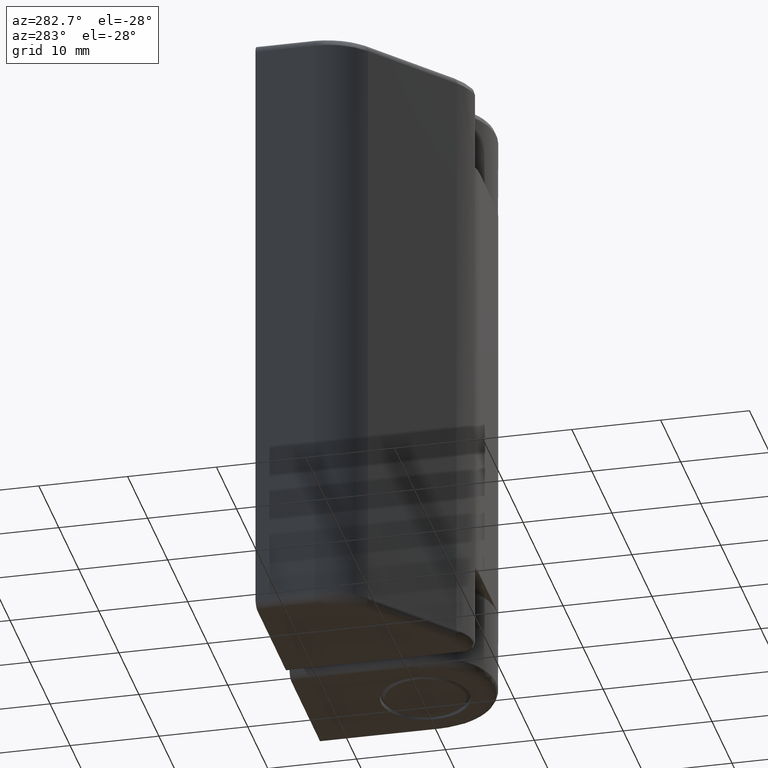
[diagram: clean part render]
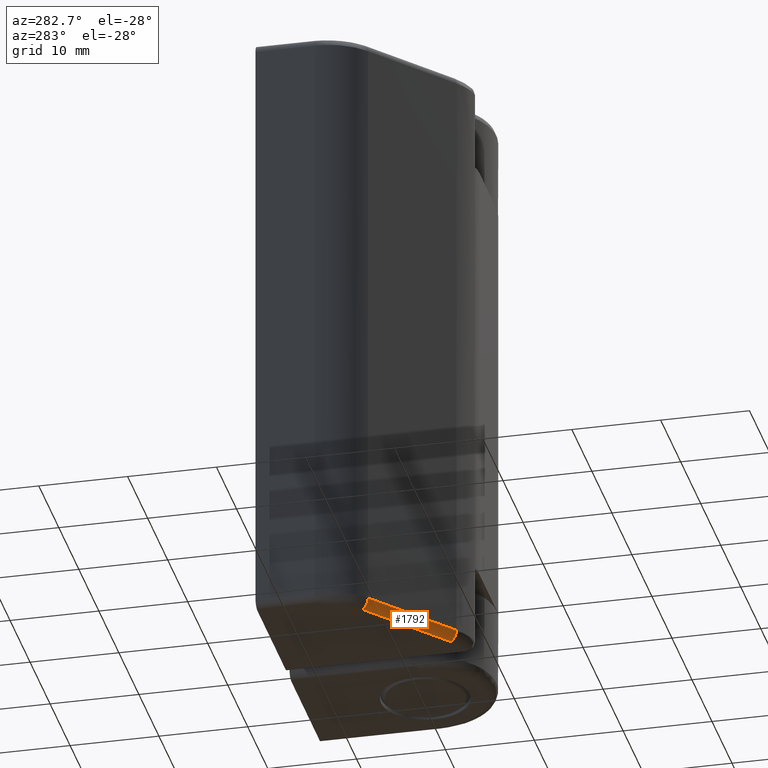
[diagram: same view with one face highlighted and labeled with its STEP entity id]
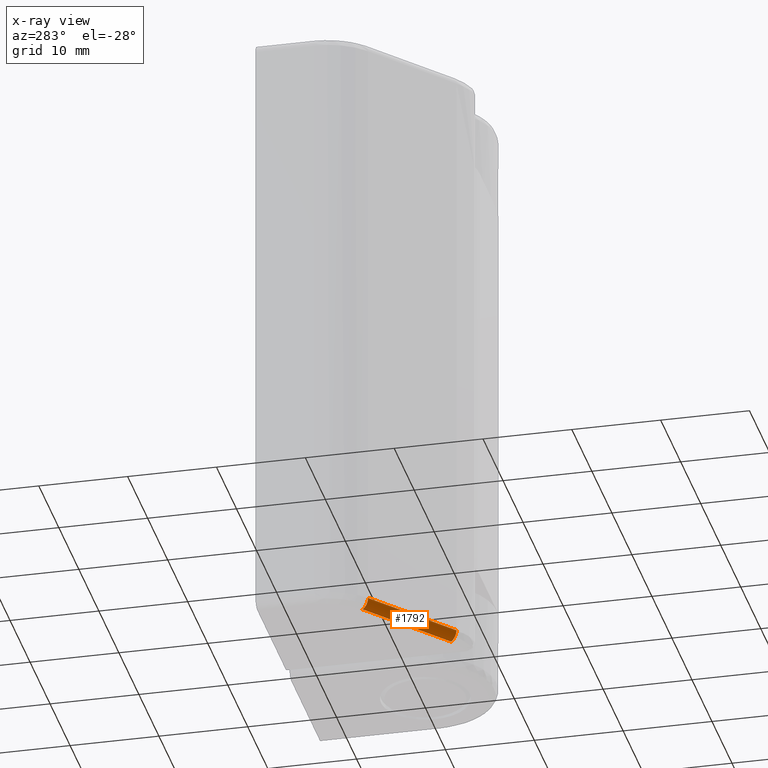
[diagram: x-ray of the same camera — body ghosted, the highlighted face saturated]
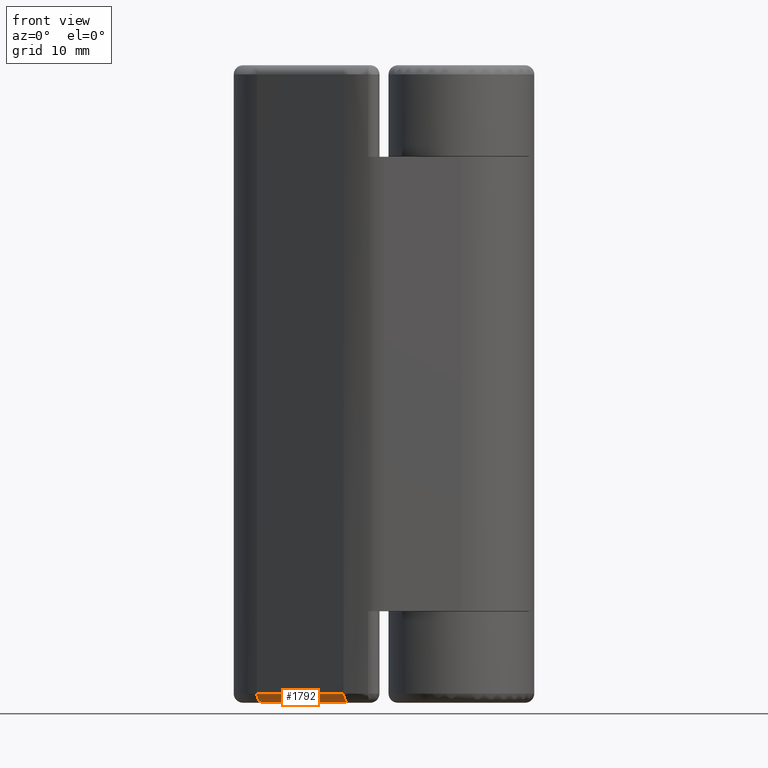
[diagram: same view with one face highlighted and labeled with its STEP entity id]
A machine part, auxiliary view. The second image highlights one B-rep face of the part: STEP entity #1792.
The next image is the same camera in x-ray: the body ghosted, the highlighted face saturated — about 0% of this face is hidden behind the body in this view.
A second angle (front view) of the same face is appended — the face is thin or edge-on in the first view.
In plain terms, the highlighted face is a freeform B-spline surface patch.
Its self-contained STEP definition (entity closure, byte-faithful):
#1701=CARTESIAN_POINT('',(-21.812655122359558,2.175945489777225,0.0));
#1702=VERTEX_POINT('',#1701);
#1703=CARTESIAN_POINT('',(-22.448097949442602,1.403797031378750,1.0));
#1704=VERTEX_POINT('',#1703);
#1705=CARTESIAN_POINT('',(-21.812655122359558,2.175945489777225,0.0));
#1706=CARTESIAN_POINT('',(-22.448097686274632,1.403797351163245,0.0));
#1707=CARTESIAN_POINT('',(-22.448097949442602,1.403797031378750,1.0));
#1715=(BOUNDED_CURVE()B_SPLINE_CURVE(2,(#1705,#1706,#1707),.UNSPECIFIED.,.F.,.U.)CURVE()GEOMETRIC_REPRESENTATION_ITEM()QUASI_UNIFORM_CURVE()RATIONAL_B_SPLINE_CURVE((1.0,0.707106781186548,1.0))REPRESENTATION_ITEM(''));
#1716=EDGE_CURVE('',#1702,#1704,#1715,.T.);
#1748=CARTESIAN_POINT('',(-22.023454685313069,2.405551038633137,0.000951778418143));
#1749=CARTESIAN_POINT('',(-12.030613657179730,-5.802857094959152,0.000951778418143));
#1750=CARTESIAN_POINT('',(-22.734159688550903,1.540345264301504,-0.047934493097323));
#1751=CARTESIAN_POINT('',(-12.741318660417569,-6.668062869290783,-0.047934493097323));
#1752=CARTESIAN_POINT('',(-22.684321586046291,1.601017714716618,1.070058135861450));
#1753=CARTESIAN_POINT('',(-12.691480557912959,-6.607390418875667,1.070058135861450));
#1761=(BOUNDED_SURFACE()B_SPLINE_SURFACE(1,2,((#1748,#1750,#1752),(#1749,#1751,#1753)),.UNSPECIFIED.,.F.,.F.,.U.)B_SPLINE_SURFACE_WITH_KNOTS((2,2),(3,3),(0.0,12.931930865155801),(0.0,0.994386624181271),.UNSPECIFIED.)GEOMETRIC_REPRESENTATION_ITEM()RATIONAL_B_SPLINE_SURFACE(((1.0,0.664513888678808,0.996233580750380),(1.0,0.664513888678808,0.996233580750380)))REPRESENTATION_ITEM('')SURFACE());
#1762=CARTESIAN_POINT('',(-12.302027913291660,-5.636357220650260,0.0));
#1763=VERTEX_POINT('',#1762);
#1764=CARTESIAN_POINT('',(-12.936767999999800,-6.409084000000000,1.0));
#1765=VERTEX_POINT('',#1764);
#1766=CARTESIAN_POINT('',(-12.302027913291660,-5.636357220650260,0.0));
#1767=CARTESIAN_POINT('',(-12.936767475324830,-6.409083361265383,0.0));
#1768=CARTESIAN_POINT('',(-12.936767999999800,-6.409084000000000,1.0));
#1776=(BOUNDED_CURVE()B_SPLINE_CURVE(2,(#1766,#1767,#1768),.UNSPECIFIED.,.F.,.U.)CURVE()GEOMETRIC_REPRESENTATION_ITEM()QUASI_UNIFORM_CURVE()RATIONAL_B_SPLINE_CURVE((1.0,0.707106781186548,1.0))REPRESENTATION_ITEM(''));
#1777=EDGE_CURVE('',#1763,#1765,#1776,.T.);
#1778=ORIENTED_EDGE('',*,*,#1777,.T.);
#1779=CARTESIAN_POINT('',(-22.448097949442602,1.403797031378750,1.0));
#1780=CARTESIAN_POINT('',(-12.936767999999800,-6.409084000000000,1.0));
#1781=QUASI_UNIFORM_CURVE('',1,(#1779,#1780),.UNSPECIFIED.,.F.,.U.);
#1782=EDGE_CURVE('',#1704,#1765,#1781,.T.);
#1783=ORIENTED_EDGE('',*,*,#1782,.F.);
#1784=ORIENTED_EDGE('',*,*,#1716,.F.);
#1785=CARTESIAN_POINT('',(-12.302027913291660,-5.636357220650260,0.0));
#1786=CARTESIAN_POINT('',(-21.812655122359558,2.175945489777225,0.0));
#1787=QUASI_UNIFORM_CURVE('',1,(#1785,#1786),.UNSPECIFIED.,.F.,.U.);
#1788=EDGE_CURVE('',#1763,#1702,#1787,.T.);
#1789=ORIENTED_EDGE('',*,*,#1788,.F.);
#1790=EDGE_LOOP('',(#1778,#1783,#1784,#1789));
#1791=FACE_OUTER_BOUND('',#1790,.T.);
#1792=ADVANCED_FACE('',(#1791),#1761,.T.);